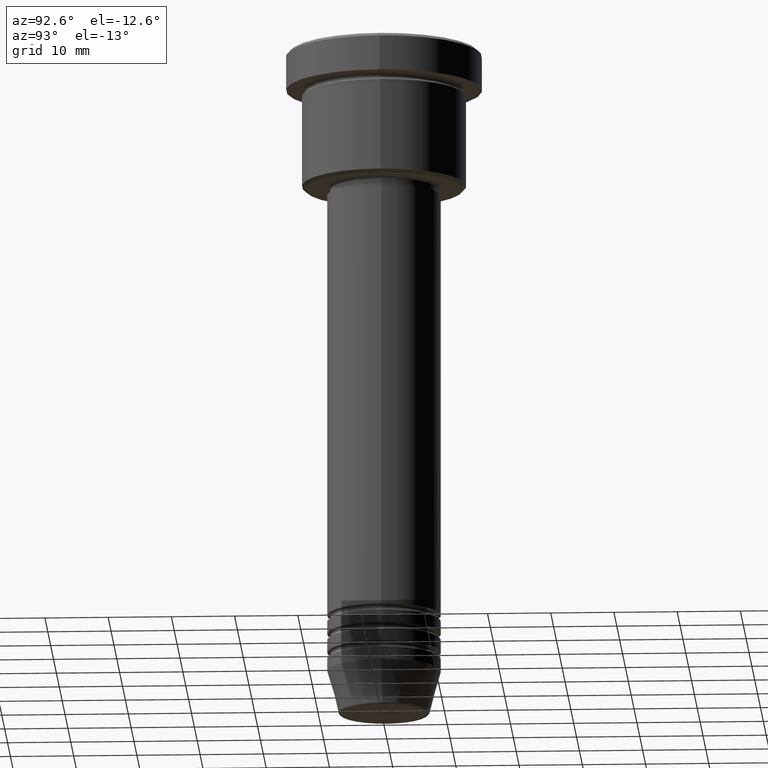
[diagram: clean part render]
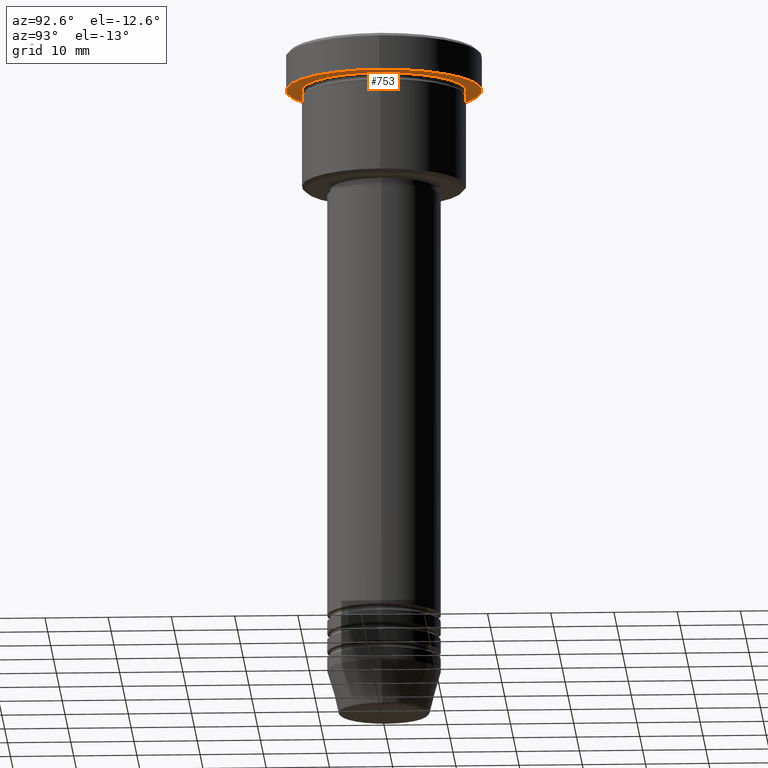
[diagram: same view with one face highlighted and labeled with its STEP entity id]
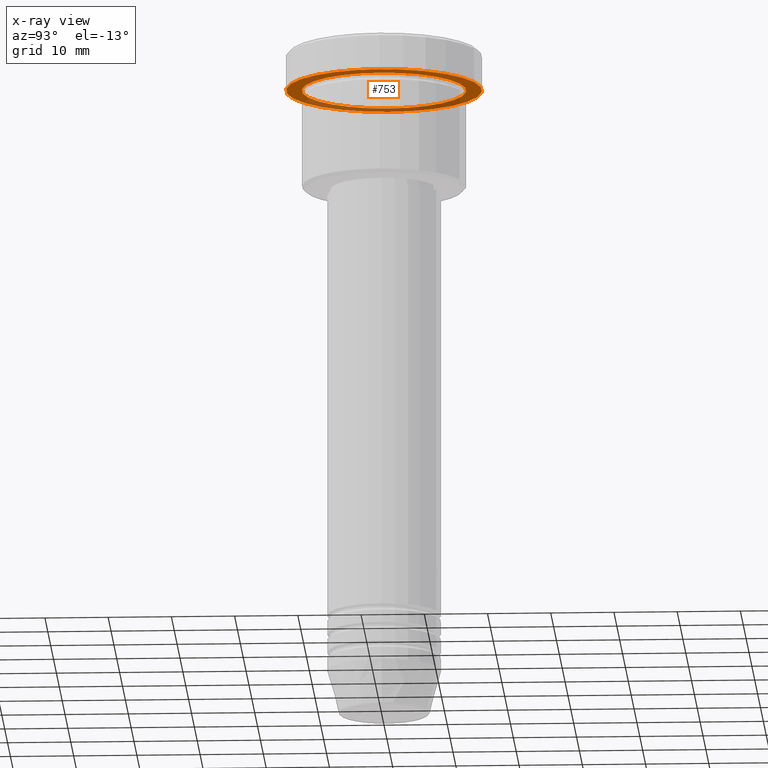
[diagram: x-ray of the same camera — body ghosted, the highlighted face saturated]
A machine part, auxiliary view. The second image highlights one B-rep face of the part: STEP entity #753.
The next image is the same camera in x-ray: the body ghosted, the highlighted face saturated — about 33% of this face is hidden behind the body in this view.
In plain terms, the highlighted planar face has unit normal (0, 0, -1).
Its self-contained STEP definition (entity closure, byte-faithful):
#21 = VERTEX_POINT ( 'NONE', #103 ) ;
#49 = EDGE_CURVE ( 'NONE', #541, #597, #256, .T. ) ;
#70 = ORIENTED_EDGE ( 'NONE', *, *, #615, .F. ) ;
#86 = CARTESIAN_POINT ( 'NONE',  ( 0.000000000000000000, 0.000000000000000000, -5.999999999999995559 ) ) ;
#103 = CARTESIAN_POINT ( 'NONE',  ( -15.50000000000000000, 1.898202538678397557E-15, -5.999999999999995559 ) ) ;
#157 = DIRECTION ( 'NONE',  ( 1.000000000000000000, 0.000000000000000000, 0.000000000000000000 ) ) ;
#197 = EDGE_CURVE ( 'NONE', #21, #840, #999, .T. ) ;
#212 = DIRECTION ( 'NONE',  ( -1.000000000000000000, 0.000000000000000000, 0.000000000000000000 ) ) ;
#256 = CIRCLE ( 'NONE', #978, 13.00000000000000000 ) ;
#268 = EDGE_LOOP ( 'NONE', ( #724, #1119 ) ) ;
#276 = CARTESIAN_POINT ( 'NONE',  ( -13.00000000000000000, 0.000000000000000000, -5.999999999999994671 ) ) ;
#297 = CARTESIAN_POINT ( 'NONE',  ( 0.000000000000000000, 0.000000000000000000, -5.999999999999995559 ) ) ;
#333 = AXIS2_PLACEMENT_3D ( 'NONE', #1179, #538, #637 ) ;
#336 = AXIS2_PLACEMENT_3D ( 'NONE', #86, #453, #525 ) ;
#368 = DIRECTION ( 'NONE',  ( -0.000000000000000000, -0.000000000000000000, 1.000000000000000000 ) ) ;
#453 = DIRECTION ( 'NONE',  ( -0.000000000000000000, -0.000000000000000000, 1.000000000000000000 ) ) ;
#462 = FACE_OUTER_BOUND ( 'NONE', #1046, .T. ) ;
#474 = DIRECTION ( 'NONE',  ( -1.000000000000000000, 0.000000000000000000, -0.000000000000000000 ) ) ;
#492 = PLANE ( 'NONE',  #1001 ) ;
#517 = CARTESIAN_POINT ( 'NONE',  ( 13.00000000000000000, 1.592040838891559095E-15, -5.999999999999994671 ) ) ;
#525 = DIRECTION ( 'NONE',  ( -1.000000000000000000, 0.000000000000000000, 0.000000000000000000 ) ) ;
#538 = DIRECTION ( 'NONE',  ( -0.000000000000000000, -0.000000000000000000, 1.000000000000000000 ) ) ;
#541 = VERTEX_POINT ( 'NONE', #517 ) ;
#567 = AXIS2_PLACEMENT_3D ( 'NONE', #968, #368, #157 ) ;
#597 = VERTEX_POINT ( 'NONE', #276 ) ;
#615 = EDGE_CURVE ( 'NONE', #840, #21, #846, .T. ) ;
#637 = DIRECTION ( 'NONE',  ( 1.000000000000000000, 0.000000000000000000, 0.000000000000000000 ) ) ;
#646 = FACE_BOUND ( 'NONE', #268, .T. ) ;
#724 = ORIENTED_EDGE ( 'NONE', *, *, #933, .T. ) ;
#731 = CARTESIAN_POINT ( 'NONE',  ( 15.50000000000000000, 0.000000000000000000, -5.999999999999995559 ) ) ;
#752 = CIRCLE ( 'NONE', #336, 13.00000000000000000 ) ;
#753 = ADVANCED_FACE ( 'NONE', ( #646, #462 ), #492, .T. ) ;
#840 = VERTEX_POINT ( 'NONE', #731 ) ;
#846 = CIRCLE ( 'NONE', #333, 15.50000000000000000 ) ;
#915 = CARTESIAN_POINT ( 'NONE',  ( 0.000000000000000000, 15.50000000000000000, -5.999999999999995559 ) ) ;
#933 = EDGE_CURVE ( 'NONE', #597, #541, #752, .T. ) ;
#968 = CARTESIAN_POINT ( 'NONE',  ( 0.000000000000000000, 0.000000000000000000, -5.999999999999995559 ) ) ;
#978 = AXIS2_PLACEMENT_3D ( 'NONE', #297, #1025, #212 ) ;
#999 = CIRCLE ( 'NONE', #567, 15.50000000000000000 ) ;
#1001 = AXIS2_PLACEMENT_3D ( 'NONE', #915, #1019, #474 ) ;
#1019 = DIRECTION ( 'NONE',  ( 0.000000000000000000, 0.000000000000000000, -1.000000000000000000 ) ) ;
#1025 = DIRECTION ( 'NONE',  ( -0.000000000000000000, -0.000000000000000000, 1.000000000000000000 ) ) ;
#1046 = EDGE_LOOP ( 'NONE', ( #70, #1153 ) ) ;
#1119 = ORIENTED_EDGE ( 'NONE', *, *, #49, .T. ) ;
#1153 = ORIENTED_EDGE ( 'NONE', *, *, #197, .F. ) ;
#1179 = CARTESIAN_POINT ( 'NONE',  ( 0.000000000000000000, 0.000000000000000000, -5.999999999999995559 ) ) ;